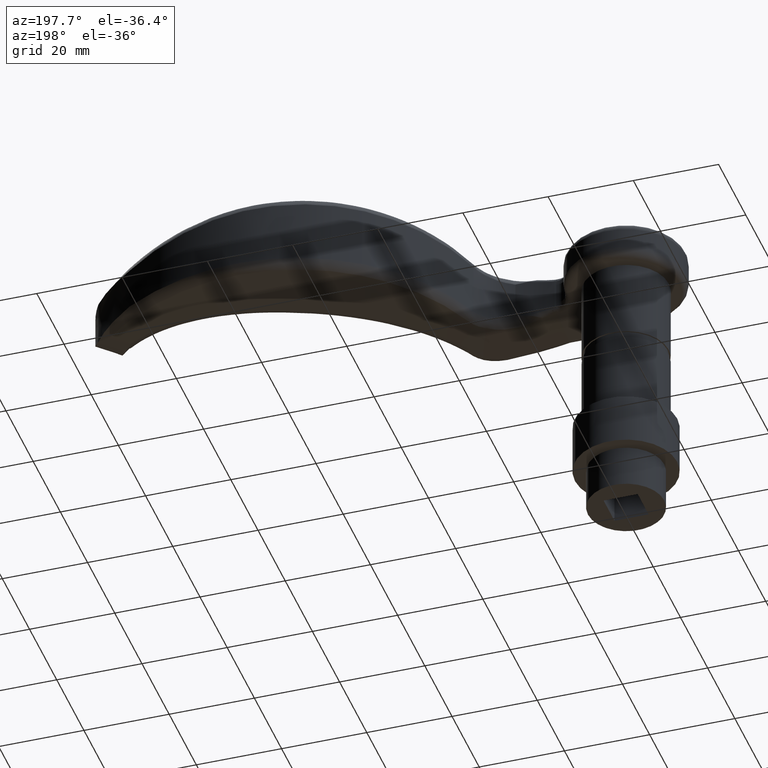
[diagram: clean part render]
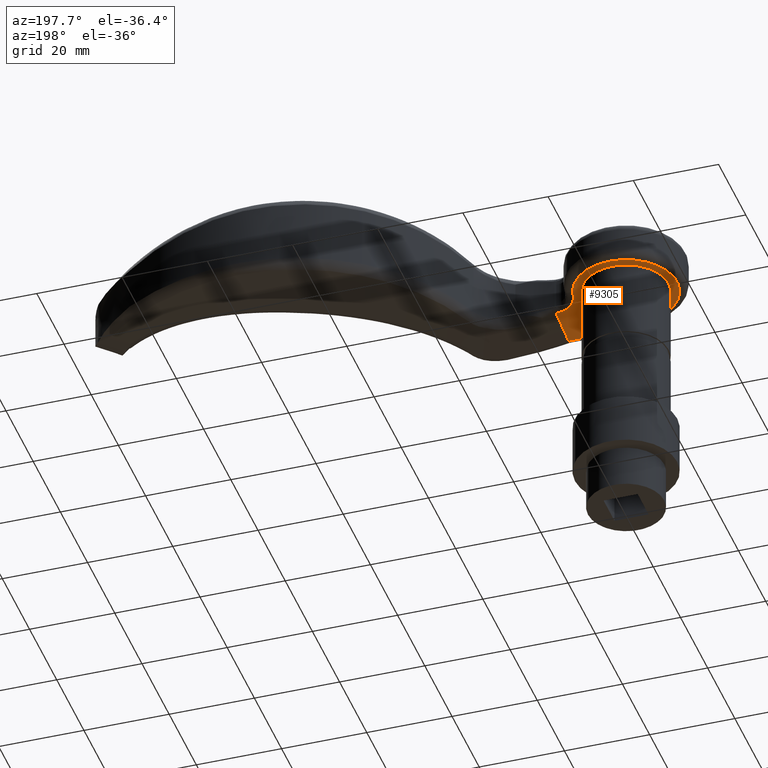
[diagram: same view with one face highlighted and labeled with its STEP entity id]
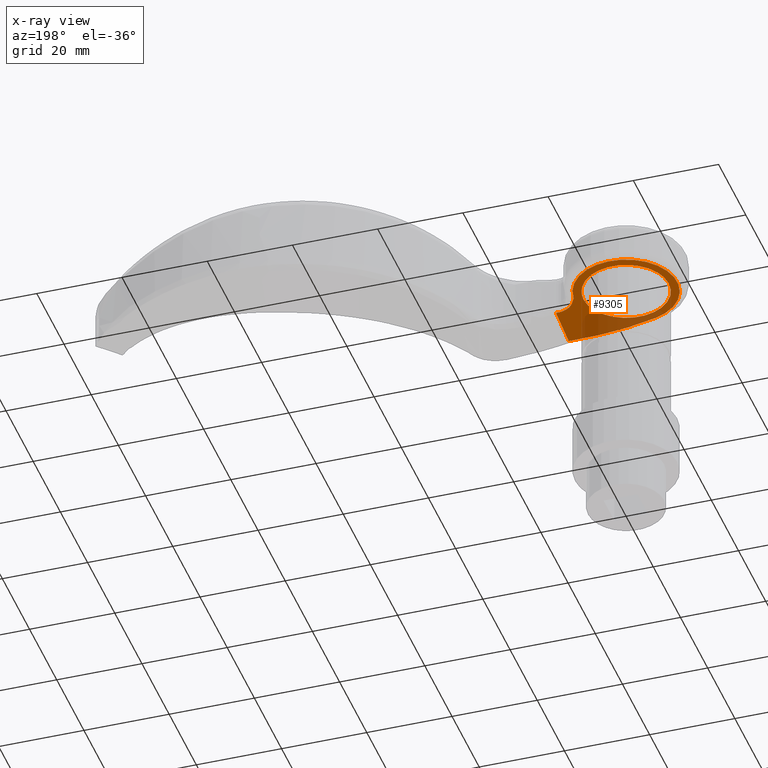
[diagram: x-ray of the same camera — body ghosted, the highlighted face saturated]
A machine part, auxiliary view. The second image highlights one B-rep face of the part: STEP entity #9305.
The next image is the same camera in x-ray: the body ghosted, the highlighted face saturated — about 36% of this face is hidden behind the body in this view.
In plain terms, the highlighted planar face has unit normal (0, 0, 1).
Its self-contained STEP definition (entity closure, byte-faithful):
#262 = CARTESIAN_POINT ( 'NONE',  ( 17.40007089314470434, -2.939288957012133441, 0.000000000000000000 ) ) ;
#388 = ORIENTED_EDGE ( 'NONE', *, *, #5937, .T. ) ;
#683 = ORIENTED_EDGE ( 'NONE', *, *, #9880, .T. ) ;
#892 = DIRECTION ( 'NONE',  ( 1.000000000000000000, 0.000000000000000000, 0.000000000000000000 ) ) ;
#919 = VERTEX_POINT ( 'NONE', #11350 ) ;
#1181 = EDGE_CURVE ( 'NONE', #919, #919, #11508, .T. ) ;
#1442 = EDGE_CURVE ( 'NONE', #8431, #8856, #10100, .T. ) ;
#1995 = EDGE_CURVE ( 'NONE', #2711, #13394, #9246, .T. ) ;
#2621 = DIRECTION ( 'NONE',  ( 0.04627360518055241567, -0.9989288030002911878, 0.000000000000000000 ) ) ;
#2628 = CIRCLE ( 'NONE', #8976, 56.60547632360797365 ) ;
#2711 = VERTEX_POINT ( 'NONE', #6191 ) ;
#2934 = CARTESIAN_POINT ( 'NONE',  ( 12.19298315879267136, 0.5501048648523576556, -9.104887683805052381E-15 ) ) ;
#3027 = CARTESIAN_POINT ( 'NONE',  ( 16.73521682793894882, -2.966937714549035210, 0.000000000000000000 ) ) ;
#3066 = DIRECTION ( 'NONE',  ( -0.000000000000000000, -0.000000000000000000, -1.000000000000000000 ) ) ;
#3554 = DIRECTION ( 'NONE',  ( 0.000000000000000000, 0.000000000000000000, 1.000000000000000000 ) ) ;
#3699 = B_SPLINE_CURVE_WITH_KNOTS ( 'NONE', 3,
 ( #262, #13561, #8027, #8120 ),
 .UNSPECIFIED., .F., .F.,
 ( 4, 4 ),
 ( 0.005438859448866536703, 0.005463303954324888294 ),
 .UNSPECIFIED. ) ;
#3940 = CARTESIAN_POINT ( 'NONE',  ( 15.06333074550259354, -2.572787151326195065, 0.000000000000000000 ) ) ;
#4178 = ORIENTED_EDGE ( 'NONE', *, *, #8429, .T. ) ;
#4266 = DIRECTION ( 'NONE',  ( 1.000000000000000000, 0.000000000000000000, 0.000000000000000000 ) ) ;
#4378 = ORIENTED_EDGE ( 'NONE', *, *, #1442, .T. ) ;
#4564 = DIRECTION ( 'NONE',  ( 1.000000000000000000, 0.000000000000000000, -0.000000000000000000 ) ) ;
#4644 = ORIENTED_EDGE ( 'NONE', *, *, #1995, .T. ) ;
#4772 = VERTEX_POINT ( 'NONE', #9516 ) ;
#4820 = AXIS2_PLACEMENT_3D ( 'NONE', #14301, #6463, #9832 ) ;
#4981 = CARTESIAN_POINT ( 'NONE',  ( 17.35216952747227381, -1.940435580594763953, 0.000000000000000000 ) ) ;
#5124 = CARTESIAN_POINT ( 'NONE',  ( 0.000000000000000000, 0.000000000000000000, 0.000000000000000000 ) ) ;
#5937 = EDGE_CURVE ( 'NONE', #8856, #2711, #12636, .T. ) ;
#5989 = EDGE_LOOP ( 'NONE', ( #388, #4644, #4178, #10888, #683, #4378 ) ) ;
#6100 = AXIS2_PLACEMENT_3D ( 'NONE', #13467, #3554, #4564 ) ;
#6191 = CARTESIAN_POINT ( 'NONE',  ( 11.95165838545281645, 1.076039886544836621, 0.000000000000000000 ) ) ;
#6326 = CARTESIAN_POINT ( 'NONE',  ( 14.80643493153564272, -2.445434105935249125, -0.000000000000000000 ) ) ;
#6463 = DIRECTION ( 'NONE',  ( -0.000000000000000000, -0.000000000000000000, -1.000000000000000000 ) ) ;
#6922 = CARTESIAN_POINT ( 'NONE',  ( 17.39958638808193214, -2.964044344727624125, 0.000000000000000000 ) ) ;
#7033 = ORIENTED_EDGE ( 'NONE', *, *, #1181, .F. ) ;
#7308 = CARTESIAN_POINT ( 'NONE',  ( 12.44790116714369432, 0.02824720745445892175, -4.660274927159257138E-31 ) ) ;
#7455 = EDGE_LOOP ( 'NONE', ( #7033 ) ) ;
#8027 = CARTESIAN_POINT ( 'NONE',  ( 17.39920358497793629, -2.955780604633045261, 0.000000000000000000 ) ) ;
#8120 = CARTESIAN_POINT ( 'NONE',  ( 17.39958638808193214, -2.964044344727624125, 0.000000000000000000 ) ) ;
#8429 = EDGE_CURVE ( 'NONE', #13394, #4772, #2628, .T. ) ;
#8431 = VERTEX_POINT ( 'NONE', #13402 ) ;
#8466 = CARTESIAN_POINT ( 'NONE',  ( 11.95165838545281645, 1.076039886544836621, 0.000000000000000000 ) ) ;
#8795 = CARTESIAN_POINT ( 'NONE',  ( 17.02560611772037191, -2.955403943373502873, 0.000000000000000000 ) ) ;
#8856 = VERTEX_POINT ( 'NONE', #10006 ) ;
#8976 = AXIS2_PLACEMENT_3D ( 'NONE', #8988, #10941, #4266 ) ;
#8988 = CARTESIAN_POINT ( 'NONE',  ( 14.77910367019704907, 53.60547632360797365, 0.000000000000000000 ) ) ;
#9138 = VECTOR ( 'NONE', #2621, 999.9999999999998863 ) ;
#9246 = B_SPLINE_CURVE_WITH_KNOTS ( 'NONE', 3,
 ( #8466, #2934, #7308, #14107, #11879, #12987, #14058, #6326, #3940, #10762, #11928, #13915, #3027, #11741 ),
 .UNSPECIFIED., .F., .F.,
 ( 4, 2, 2, 2, 2, 2, 4 ),
 ( -1.264911077444473895E-05, 0.001723325439566649950, 0.003459299989907744632, 0.004327287265078292623, 0.005195274540248841916, 0.006063261815419395545, 0.006931249090589949174 ),
 .UNSPECIFIED. ) ;
#9305 = ADVANCED_FACE ( 'NONE', ( #13852, #11060 ), #12275, .F. ) ;
#9516 = CARTESIAN_POINT ( 'NONE',  ( 17.40007089314470434, -2.939288957012133441, 0.000000000000000000 ) ) ;
#9621 = DIRECTION ( 'NONE',  ( 1.000000000000000000, 0.000000000000000000, 0.000000000000000000 ) ) ;
#9727 = CARTESIAN_POINT ( 'NONE',  ( 0.000000000000000000, 0.000000000000000000, 0.000000000000000000 ) ) ;
#9832 = DIRECTION ( 'NONE',  ( 1.000000000000000000, 0.000000000000000000, 0.000000000000000000 ) ) ;
#9880 = EDGE_CURVE ( 'NONE', #11212, #8431, #12971, .T. ) ;
#10006 = CARTESIAN_POINT ( 'NONE',  ( -3.189420463017758056, -11.56838783539365600, 0.000000000000000000 ) ) ;
#10100 = CIRCLE ( 'NONE', #4820, 67.60547632360798787 ) ;
#10762 = CARTESIAN_POINT ( 'NONE',  ( 15.60203761241840859, -2.777586998221541315, -0.000000000000000000 ) ) ;
#10888 = ORIENTED_EDGE ( 'NONE', *, *, #14429, .T. ) ;
#10941 = DIRECTION ( 'NONE',  ( 0.000000000000000000, 0.000000000000000000, 1.000000000000000000 ) ) ;
#11060 = FACE_OUTER_BOUND ( 'NONE', #5989, .T. ) ;
#11212 = VERTEX_POINT ( 'NONE', #6922 ) ;
#11350 = CARTESIAN_POINT ( 'NONE',  ( 10.00000000000000000, 0.000000000000000000, 0.000000000000000000 ) ) ;
#11508 = CIRCLE ( 'NONE', #13475, 10.00000000000000000 ) ;
#11741 = CARTESIAN_POINT ( 'NONE',  ( 17.02560611772037191, -2.955403943373502873, 0.000000000000000000 ) ) ;
#11783 = AXIS2_PLACEMENT_3D ( 'NONE', #5124, #14082, #9621 ) ;
#11879 = CARTESIAN_POINT ( 'NONE',  ( 13.43684530660713250, -1.398030245406561622, 0.000000000000000000 ) ) ;
#11928 = CARTESIAN_POINT ( 'NONE',  ( 15.88373855393920842, -2.854184548671482080, 0.000000000000000000 ) ) ;
#12275 = PLANE ( 'NONE',  #6100 ) ;
#12636 = CIRCLE ( 'NONE', #11783, 12.00000000000000178 ) ;
#12971 = LINE ( 'NONE', #4981, #9138 ) ;
#12987 = CARTESIAN_POINT ( 'NONE',  ( 14.08225947539831679, -1.969301004060259208, -0.000000000000000000 ) ) ;
#13394 = VERTEX_POINT ( 'NONE', #8795 ) ;
#13402 = CARTESIAN_POINT ( 'NONE',  ( 17.90745278963890286, -13.92758121659828063, 0.000000000000000000 ) ) ;
#13467 = CARTESIAN_POINT ( 'NONE',  ( 14.77910367019704907, 53.60547632360797365, 0.000000000000000000 ) ) ;
#13475 = AXIS2_PLACEMENT_3D ( 'NONE', #9727, #3066, #892 ) ;
#13561 = CARTESIAN_POINT ( 'NONE',  ( 17.39936744459915374, -2.947476330246005638, 0.000000000000000000 ) ) ;
#13852 = FACE_BOUND ( 'NONE', #7455, .T. ) ;
#13915 = CARTESIAN_POINT ( 'NONE',  ( 16.44887405644226774, -2.948187846835216952, -0.000000000000000000 ) ) ;
#14058 = CARTESIAN_POINT ( 'NONE',  ( 14.31592256590847789, -2.144098699535657016, 0.000000000000000000 ) ) ;
#14082 = DIRECTION ( 'NONE',  ( -0.000000000000000000, -0.000000000000000000, -1.000000000000000000 ) ) ;
#14107 = CARTESIAN_POINT ( 'NONE',  ( 13.06955833892848773, -0.9449519293967082456, -0.000000000000000000 ) ) ;
#14301 = CARTESIAN_POINT ( 'NONE',  ( 14.77910367019704907, 53.60547632360797365, 0.000000000000000000 ) ) ;
#14429 = EDGE_CURVE ( 'NONE', #4772, #11212, #3699, .T. ) ;